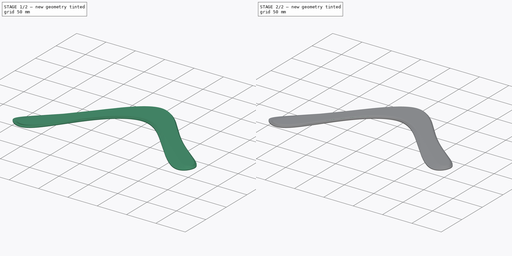
[diagram: build sequence overview — one tinted view per stage of 2, left to right]
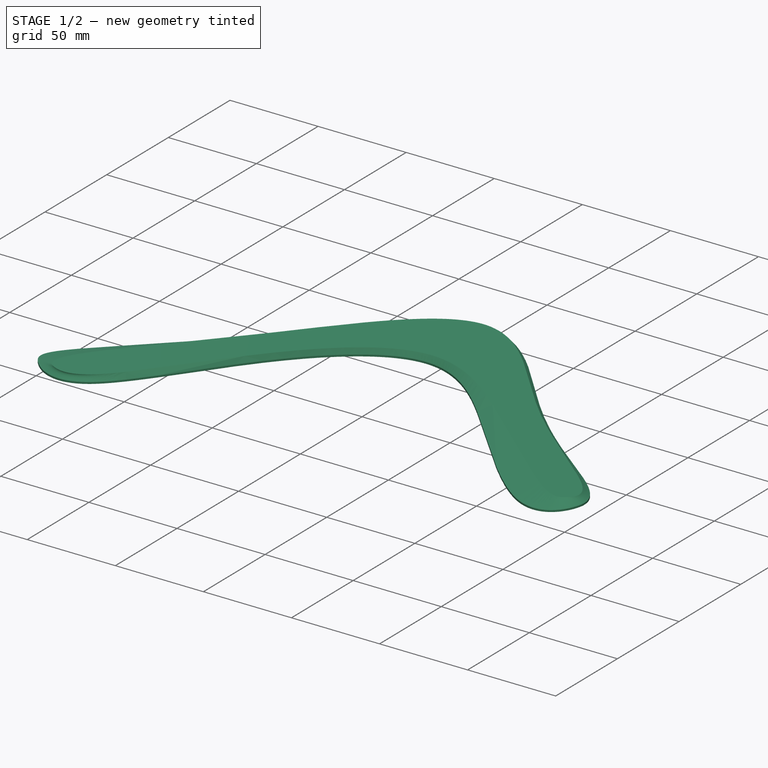
[diagram: stage 1 of 2 — iso view after this stage's code; geometry added in this stage tinted green]
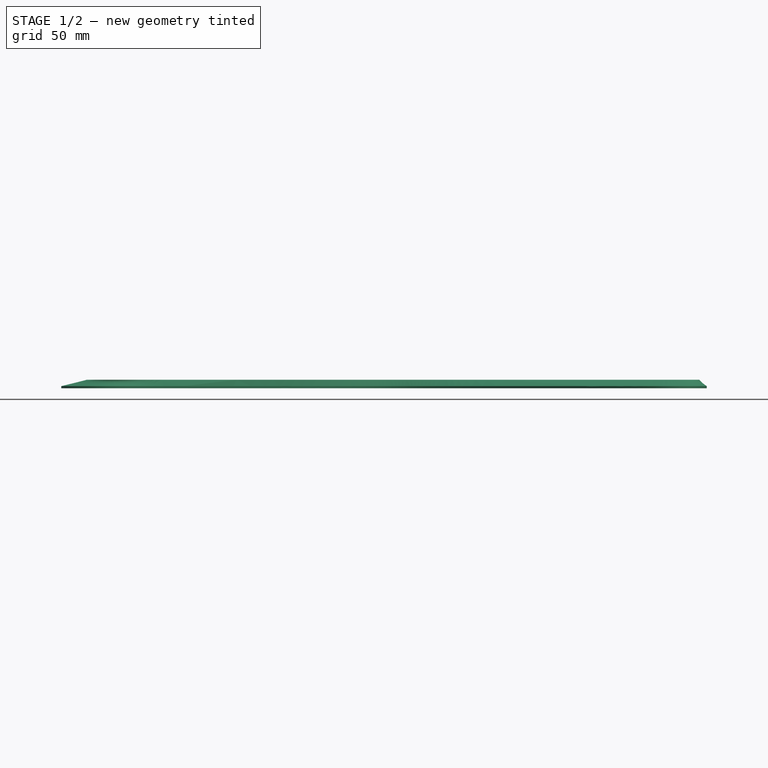
[diagram: stage 1 of 2 — front view after this stage's code; geometry added in this stage tinted green]
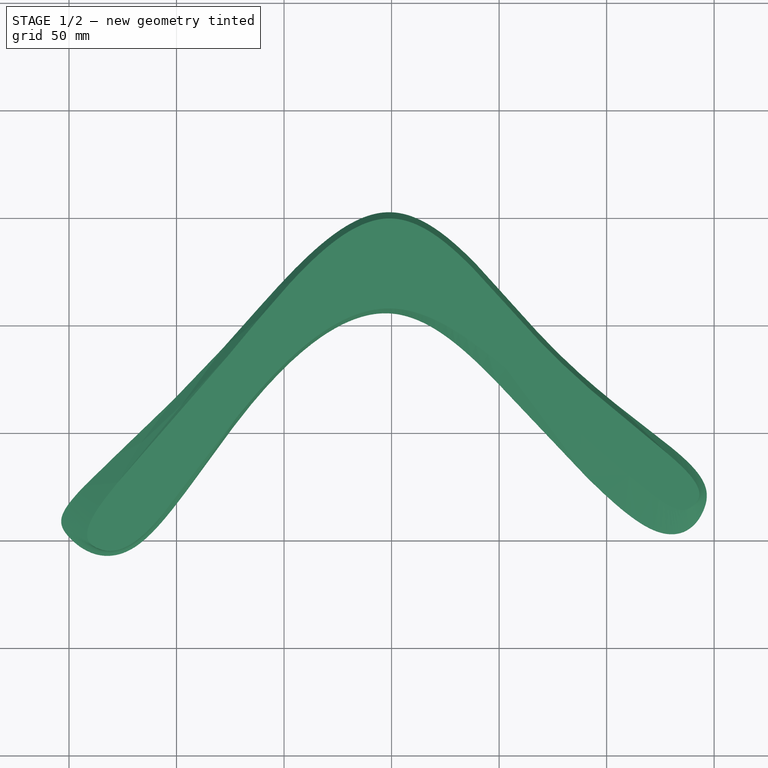
[diagram: stage 1 of 2 — top view after this stage's code; geometry added in this stage tinted green]
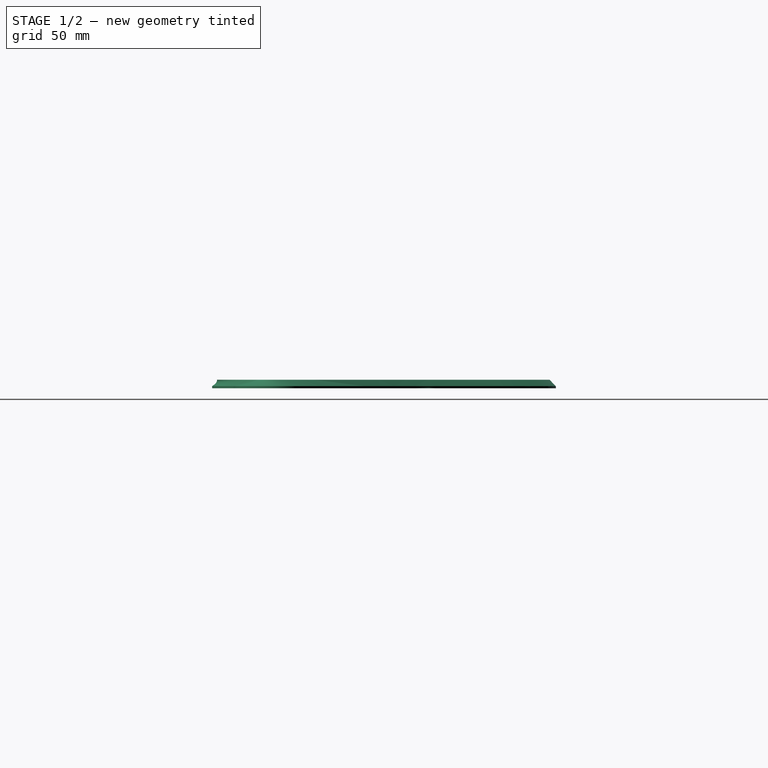
[diagram: stage 1 of 2 — right view after this stage's code; geometry added in this stage tinted green]
FCSTD DOCUMENT  (FreeCAD 0.20R27319 (Git))
Label: traditional
License: All rights reserved
LicenseURL: http://en.wikipedia.org/wiki/All_rights_reserved
objects: Sketcher::SketchObject×2, PartDesign::AdditiveLoft×1, PartDesign::Pad×1, PartDesign::Fillet×1, PartDesign::Body×1
note: 9 computed .brp shape members not serialized (recipe doc carries the construction recipe); baked Part::Feature solids carry a one-line shape summary decoded from their .brp

FEATURE [Sketcher::SketchObject] Sketch  label="Outline"
  FullyConstrained = false
  MapMode = 5
  Support = -> [XY_Plane]
  sketch-geometry (52):
    g0-g11: Circle x12 (B-spline internal-alignment scaffolding for g12; pole/knot coordinates omitted)
    g12: BSplineCurve PolesCount=12 KnotsCount=13 Degree=3 IsPeriodic=1
    g13-g25: GeomPoint x13 (B-spline internal-alignment scaffolding for g12; pole/knot coordinates omitted)
    g26-g37: Circle x12 (B-spline internal-alignment scaffolding for g38; pole/knot coordinates omitted)
    g38: BSplineCurve PolesCount=12 KnotsCount=13 Degree=3 IsPeriodic=1
    g39-g51: GeomPoint x13 (B-spline internal-alignment scaffolding for g38; pole/knot coordinates omitted)
  constraints (14):
    c: PointOnObject(g0,g-2)
    c: Weight(g0) = 1
    c: Equal(g0, g1-g6) x6
    c: PointOnObject(g6,g-2)
    c: Equal(g0, g7-g11) x5
    c: InternalAlignment(g0-g11 -> g12) x12
    c: InternalAlignment(g13-g25 -> g12) x13
    c: PointOnObject(g26,g-2)
    c: Weight(g26) = 1
    c: Equal(g26, g27-g31) x5
    c: PointOnObject(g31,g5)
    c: Equal(g26, g32-g37) x6
    c: InternalAlignment(g26-g37 -> g38) x12
    c: InternalAlignment(g39-g51 -> g38) x13
FEATURE [Sketcher::SketchObject] Sketch001  label="Top Outline"
  AttachmentOffset = pos=(0,0,3) rot=(0,0,1;0rad)
  FullyConstrained = false
  MapMode = 5
  Placement = pos=(0,0,3) rot=(0,0,1;0rad)
  Support = -> [XY_Plane]
  expr: Constraints[1] = Sketch.Constraints[40]
  sketch-geometry (26):
    g0-g11: Circle x12 (B-spline internal-alignment scaffolding for g12; pole/knot coordinates omitted)
    g12: BSplineCurve PolesCount=12 KnotsCount=13 Degree=3 IsPeriodic=1
    g13-g25: GeomPoint x13 (B-spline internal-alignment scaffolding for g12; pole/knot coordinates omitted)
  constraints (5):
    c: PointOnObject(g0,g-2)
    c: Weight(g0) = 1
    c: Equal(g0, g1-g11) x11
    c: InternalAlignment(g0-g11 -> g12) x12
    c: InternalAlignment(g13-g25 -> g12) x13
FEATURE [PartDesign::AdditiveLoft] AdditiveLoft  label="Main Loft"
  Closed = false
  Profile = -> Sketch
  Ruled = false
  Sections = -> [Sketch001]
FEATURE [PartDesign::Pad] Pad  label="Bottom Pad"
  BaseFeature = -> AdditiveLoft
  Direction = (0,0,-1)
  Length = 1
  Length2 = 10
  Profile = -> AdditiveLoft [Face1]
  Type = 0
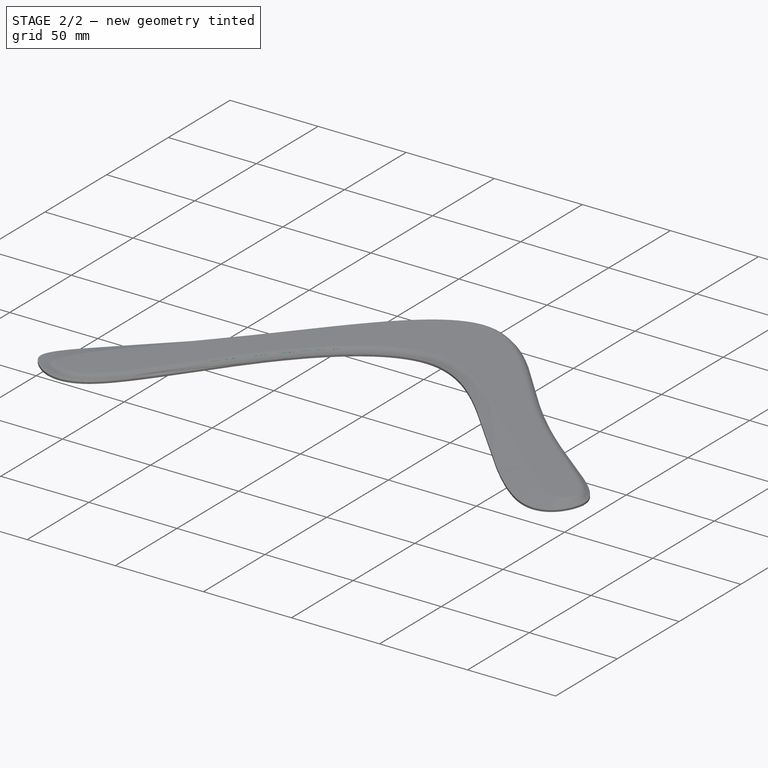
[diagram: stage 2 of 2 — iso view after this stage's code; geometry added in this stage tinted green]
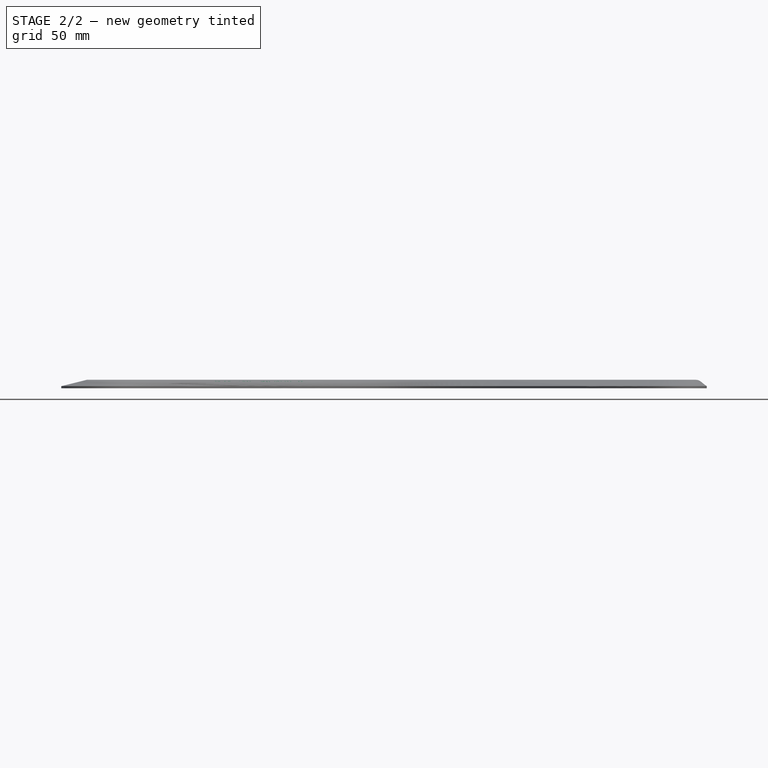
[diagram: stage 2 of 2 — front view after this stage's code; geometry added in this stage tinted green]
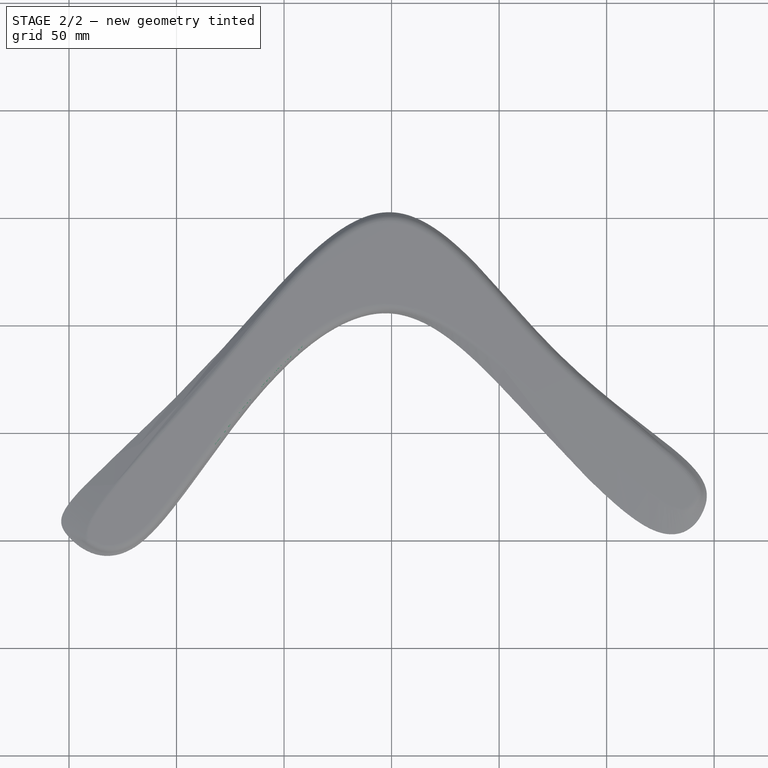
[diagram: stage 2 of 2 — top view after this stage's code; geometry added in this stage tinted green]
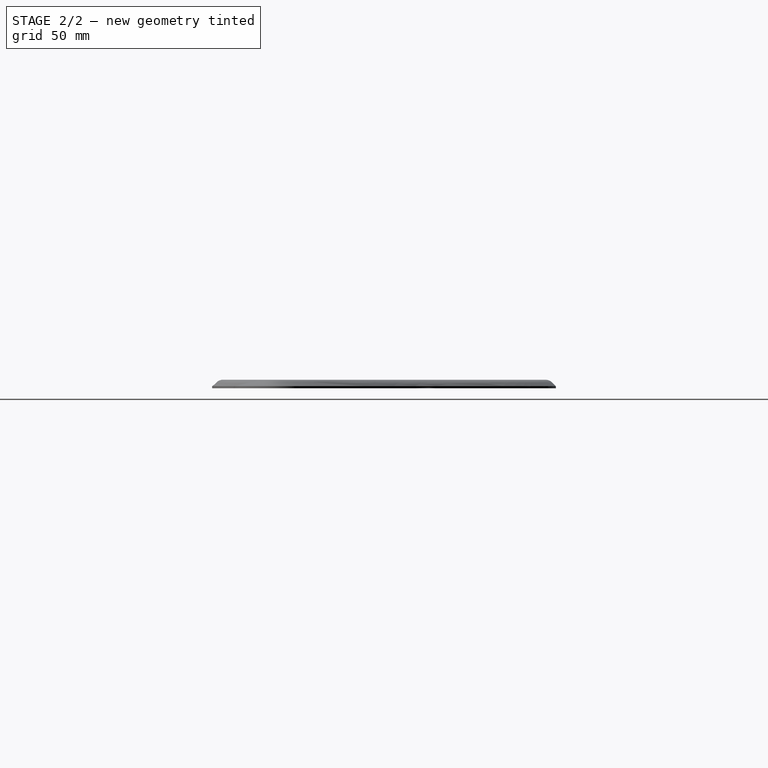
[diagram: stage 2 of 2 — right view after this stage's code; geometry added in this stage tinted green]
FEATURE [PartDesign::Fillet] Fillet  label="Airfoil Fillet"
  Base = -> Pad [Face3]
  BaseFeature = -> Pad
  Radius = 4.5
  SupportTransform = false
FEATURE [PartDesign::Body] Body
  Group = -> [Sketch,Sketch001,AdditiveLoft,Pad,Fillet]
  Origin = -> Origin
  Tip = -> Fillet
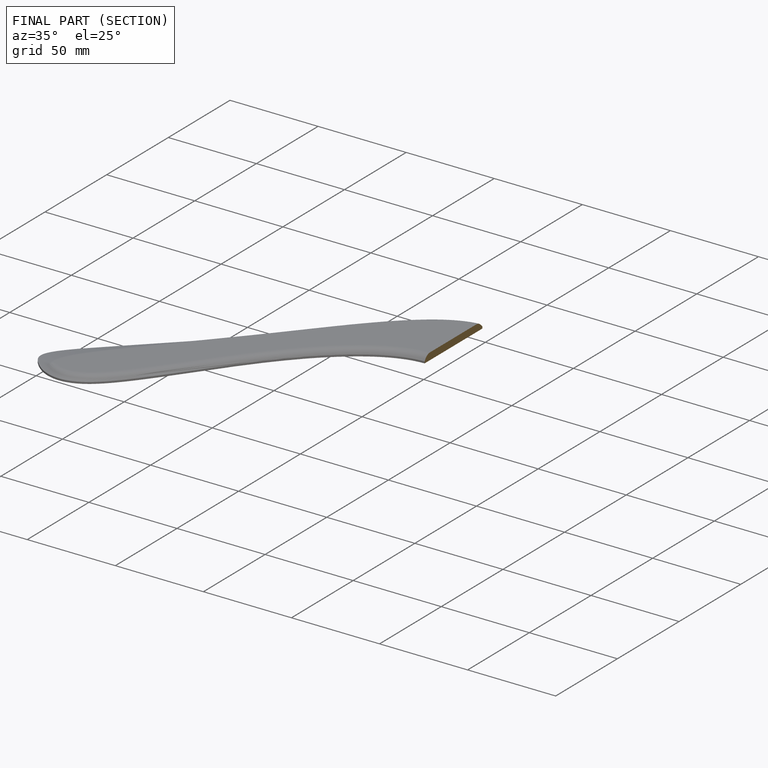
[diagram: finished part — half-section view (interior)]
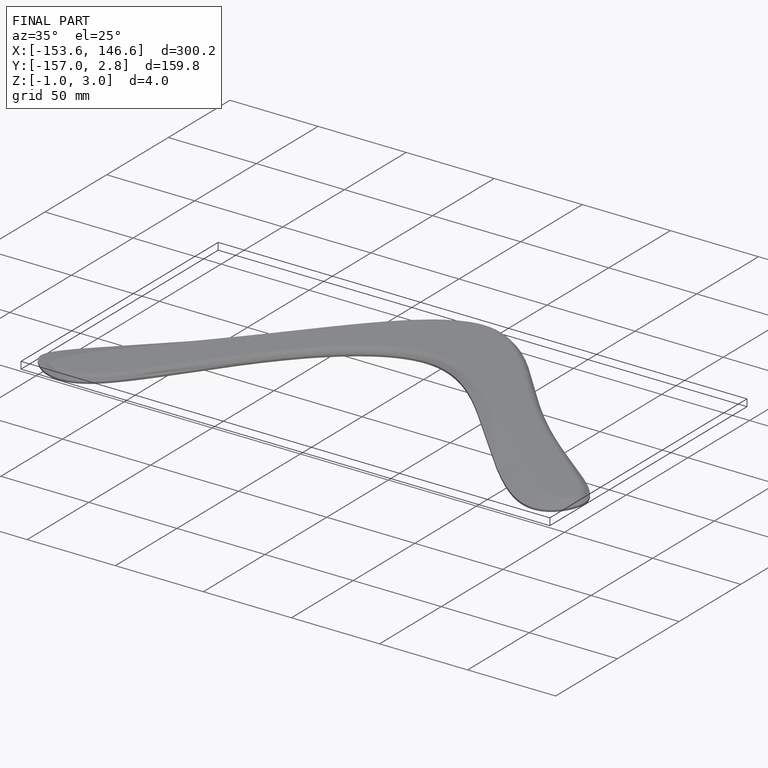
[diagram: finished part — iso view with bounding-box wireframe]
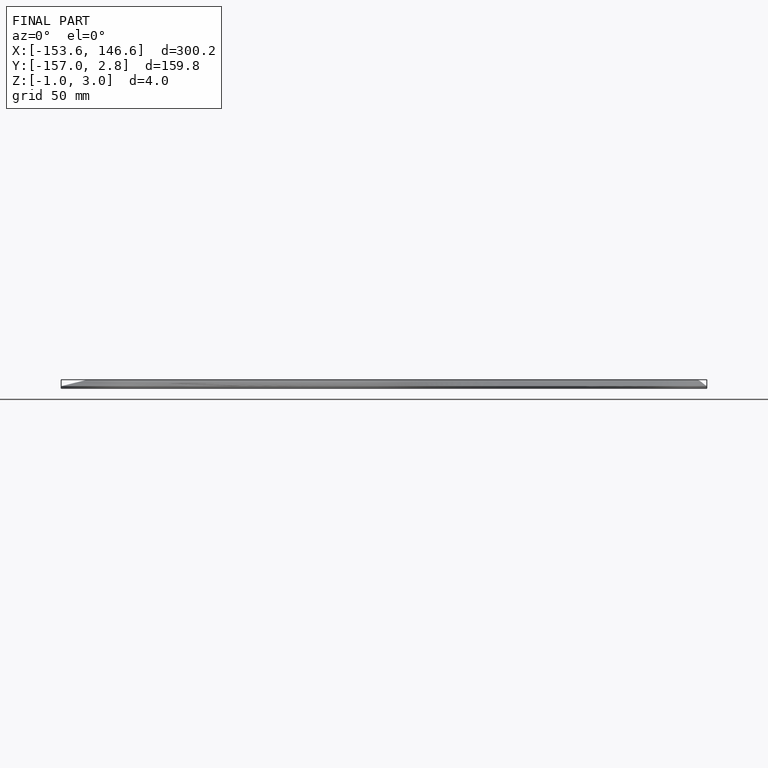
[diagram: finished part — front view with bounding-box wireframe]
